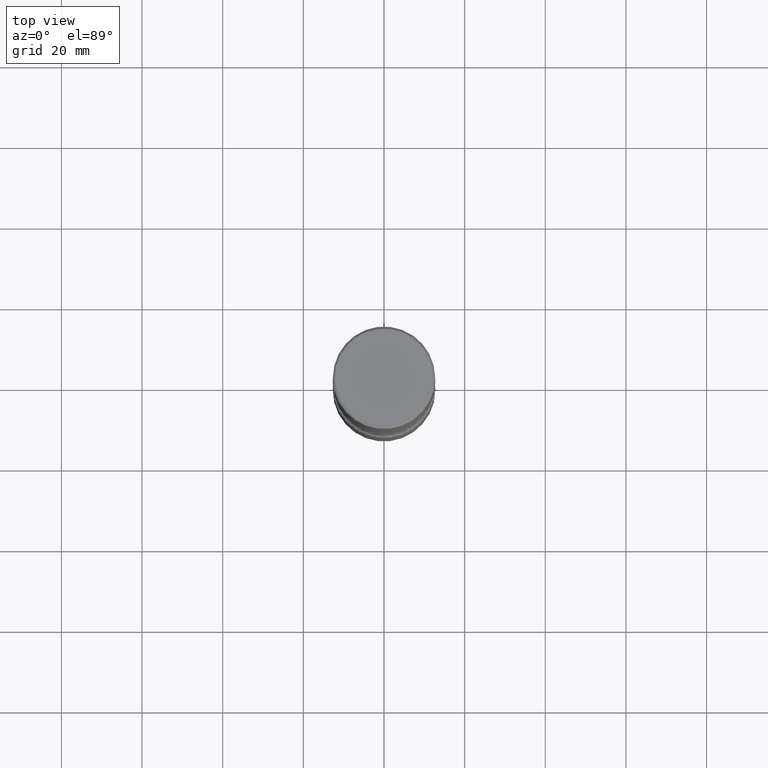
[diagram: clean part render]
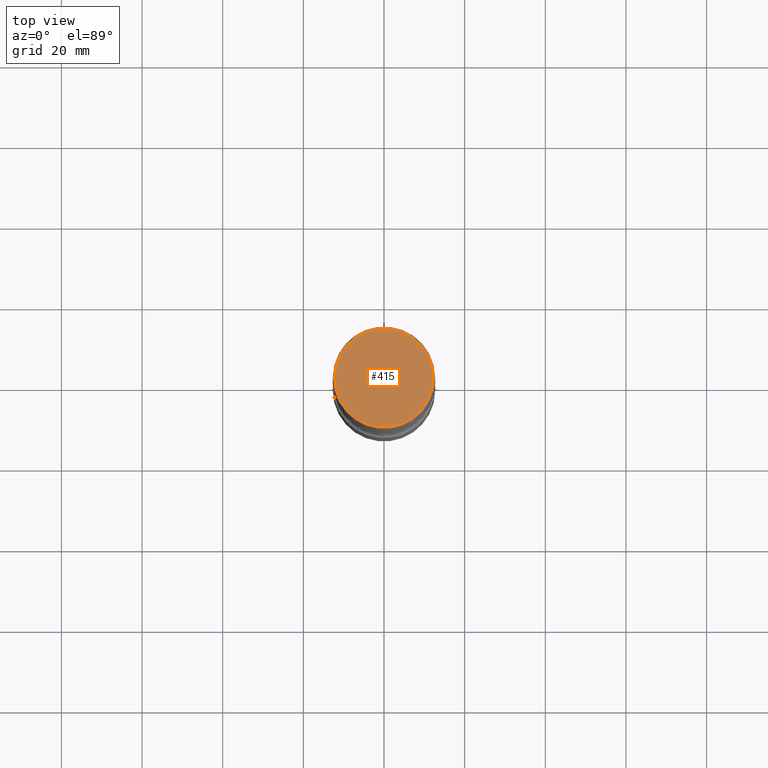
[diagram: same view with one face highlighted and labeled with its STEP entity id]
A machine part, top view. The second image highlights one B-rep face of the part: STEP entity #415.
In plain terms, the highlighted planar face has unit normal (0, -0, -1).
Its self-contained STEP definition (entity closure, byte-faithful):
#13 = CIRCLE ( 'NONE', #209, 0.4799999999999998157 ) ;
#32 = CIRCLE ( 'NONE', #74, 0.4799999999999998157 ) ;
#37 = VERTEX_POINT ( 'NONE', #545 ) ;
#72 = DIRECTION ( 'NONE',  ( 1.000000000000000000, -6.982962677686266711E-15, 4.876431871984415397E-29 ) ) ;
#74 = AXIS2_PLACEMENT_3D ( 'NONE', #378, #540, #72 ) ;
#136 = EDGE_CURVE ( 'NONE', #37, #202, #32, .T. ) ;
#146 = CARTESIAN_POINT ( 'NONE',  ( -0.4799999999999998157, 3.386736898677838408E-15, 1.707404996037808406E-17 ) ) ;
#149 = ORIENTED_EDGE ( 'NONE', *, *, #136, .T. ) ;
#168 = DIRECTION ( 'NONE',  ( -2.445468806185136597E-29, 3.491481338843145583E-15, 1.000000000000000000 ) ) ;
#202 = VERTEX_POINT ( 'NONE', #146 ) ;
#209 = AXIS2_PLACEMENT_3D ( 'NONE', #210, #168, #348 ) ;
#210 = CARTESIAN_POINT ( 'NONE',  ( -4.175405657340879278E-46, 5.961372681521788801E-32, 1.707404996040164512E-17 ) ) ;
#233 = AXIS2_PLACEMENT_3D ( 'NONE', #289, #418, #464 ) ;
#289 = CARTESIAN_POINT ( 'NONE',  ( 3.351822085289406364E-15, 0.4799999999999998157, -1.667374017664508443E-15 ) ) ;
#292 = EDGE_CURVE ( 'NONE', #202, #37, #13, .T. ) ;
#348 = DIRECTION ( 'NONE',  ( 1.000000000000000000, -6.982962677686266711E-15, 4.876431871984415397E-29 ) ) ;
#378 = CARTESIAN_POINT ( 'NONE',  ( -4.175405657340879278E-46, 5.961372681521788801E-32, 1.707404996040164512E-17 ) ) ;
#379 = PLANE ( 'NONE',  #233 ) ;
#413 = EDGE_LOOP ( 'NONE', ( #440, #149 ) ) ;
#415 = ADVANCED_FACE ( 'NONE', ( #501 ), #379, .F. ) ;
#418 = DIRECTION ( 'NONE',  ( 2.438088387897960049E-29, -3.491481338843145188E-15, -1.000000000000000000 ) ) ;
#440 = ORIENTED_EDGE ( 'NONE', *, *, #292, .T. ) ;
#464 = DIRECTION ( 'NONE',  ( -1.000000000000000000, 6.982962677686265922E-15, -4.876176775795935793E-29 ) ) ;
#501 = FACE_OUTER_BOUND ( 'NONE', #413, .T. ) ;
#540 = DIRECTION ( 'NONE',  ( -2.445468806185136597E-29, 3.491481338843145583E-15, 1.000000000000000000 ) ) ;
#545 = CARTESIAN_POINT ( 'NONE',  ( 0.4799999999999998157, -3.396558832296481310E-15, 1.707404996042524007E-17 ) ) ;